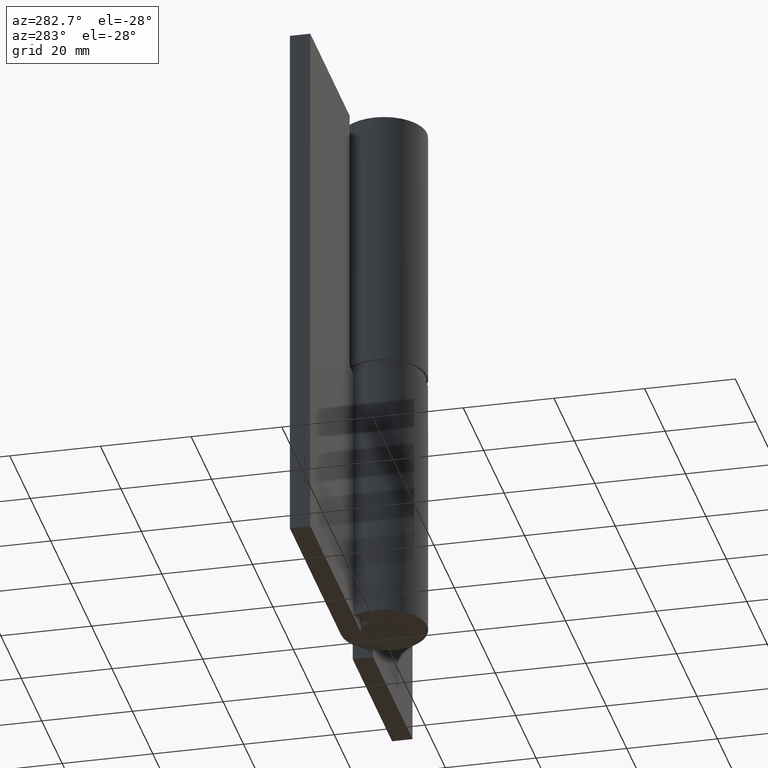
[diagram: clean part render]
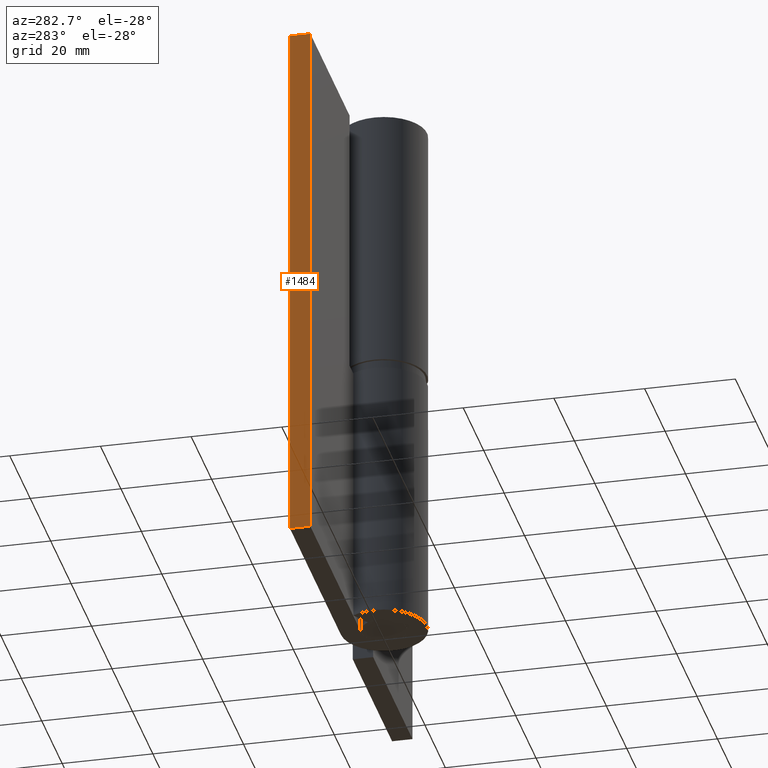
[diagram: same view with one face highlighted and labeled with its STEP entity id]
A machine part, auxiliary view. The second image highlights one B-rep face of the part: STEP entity #1484.
In plain terms, the highlighted face is a freeform B-spline surface patch.
Its self-contained STEP definition (entity closure, byte-faithful):
#1384=CARTESIAN_POINT('',(-49.999991999999899,5.0,0.0));
#1385=VERTEX_POINT('',#1384);
#1393=CARTESIAN_POINT('',(-49.999991999999899,9.500000000000000,0.0));
#1394=VERTEX_POINT('',#1393);
#1395=CARTESIAN_POINT('',(-49.999991999999899,9.500000000000000,0.0));
#1396=CARTESIAN_POINT('',(-49.999991999999899,5.0,0.0));
#1397=QUASI_UNIFORM_CURVE('',1,(#1395,#1396),.UNSPECIFIED.,.F.,.U.);
#1398=EDGE_CURVE('',#1394,#1385,#1397,.T.);
#1457=CARTESIAN_POINT('',(-49.999991999999899,4.775225008721874,-5.994000516666691));
#1458=CARTESIAN_POINT('',(-49.999991999999899,4.775225008721874,125.994018735317890));
#1459=CARTESIAN_POINT('',(-49.999991999999899,9.724775111977532,-5.994000516666691));
#1460=CARTESIAN_POINT('',(-49.999991999999899,9.724775111977532,125.994018735317890));
#1461=B_SPLINE_SURFACE_WITH_KNOTS('',1,1,((#1457,#1459),(#1458,#1460)),.UNSPECIFIED.,.F.,.F.,.U.,(2,2),(2,2),(0.0,131.988019251984610),(0.0,4.949550103255659),.UNSPECIFIED.);
#1462=CARTESIAN_POINT('',(-49.999991999999899,9.500000000000000,120.000015000000000));
#1463=VERTEX_POINT('',#1462);
#1464=CARTESIAN_POINT('',(-49.999991999999899,5.0,120.000015000000000));
#1465=VERTEX_POINT('',#1464);
#1466=CARTESIAN_POINT('',(-49.999991999999899,9.500000000000000,120.000015000000000));
#1467=CARTESIAN_POINT('',(-49.999991999999899,5.0,120.000015000000000));
#1468=QUASI_UNIFORM_CURVE('',1,(#1466,#1467),.UNSPECIFIED.,.F.,.U.);
#1469=EDGE_CURVE('',#1463,#1465,#1468,.T.);
#1470=ORIENTED_EDGE('',*,*,#1469,.F.);
#1471=CARTESIAN_POINT('',(-49.999991999999899,9.500000000000000,0.0));
#1472=CARTESIAN_POINT('',(-49.999991999999899,9.500000000000000,120.000015000000000));
#1473=QUASI_UNIFORM_CURVE('',1,(#1471,#1472),.UNSPECIFIED.,.F.,.U.);
#1474=EDGE_CURVE('',#1394,#1463,#1473,.T.);
#1475=ORIENTED_EDGE('',*,*,#1474,.F.);
#1476=ORIENTED_EDGE('',*,*,#1398,.T.);
#1477=CARTESIAN_POINT('',(-49.999991999999899,5.0,0.0));
#1478=CARTESIAN_POINT('',(-49.999991999999899,5.0,120.000015000000000));
#1479=QUASI_UNIFORM_CURVE('',1,(#1477,#1478),.UNSPECIFIED.,.F.,.U.);
#1480=EDGE_CURVE('',#1385,#1465,#1479,.T.);
#1481=ORIENTED_EDGE('',*,*,#1480,.T.);
#1482=EDGE_LOOP('',(#1470,#1475,#1476,#1481));
#1483=FACE_OUTER_BOUND('',#1482,.T.);
#1484=ADVANCED_FACE('',(#1483),#1461,.T.);